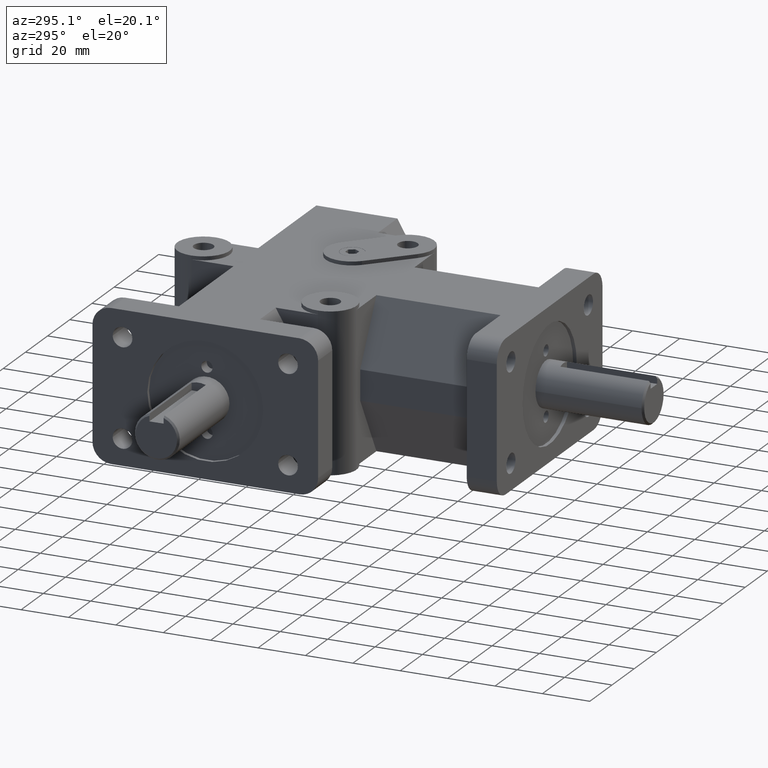
[diagram: clean part render]
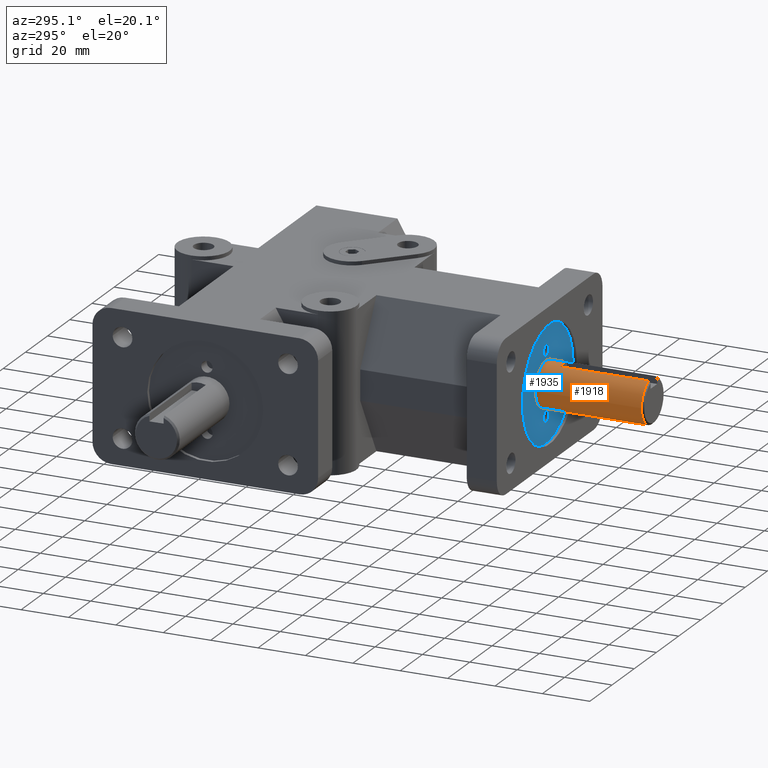
[diagram: same view with the hole feature highlighted: cylindrical wall and planar end face, labeled with their STEP entity ids]
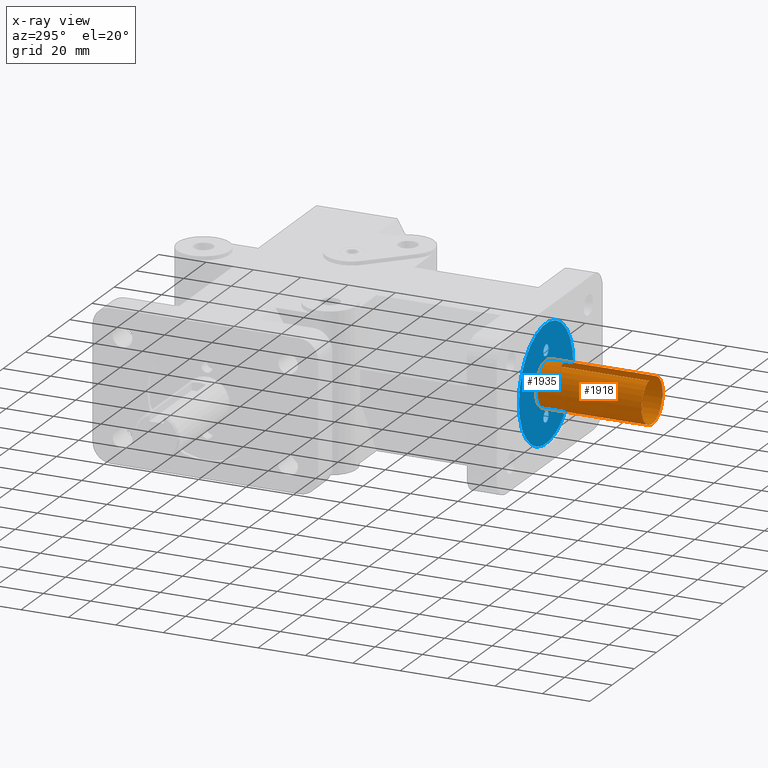
[diagram: x-ray of the same camera — body ghosted, the hole faces saturated]
A machine part, auxiliary view. The highlighted faces form one hole feature of diameter 19 mm: the cylindrical wall (entity #1918, orange) and its adjacent planar end face (entity #1935, blue) — they share a circular edge in the B-rep.
The next image is the same camera in x-ray (body ghosted, the hole faces saturated) — the bore reads through the body.
Wall:
#136=FACE_OUTER_BOUND('',#246,.T.);
#246=EDGE_LOOP('',(#1346,#1347,#1348,#1349,#1350,#1351,#1352,#1353));
#387=LINE('',#2835,#578);
#391=LINE('',#2848,#582);
#397=LINE('',#2867,#588);
#578=VECTOR('',#2255,1.);
#582=VECTOR('',#2261,1.);
#588=VECTOR('',#2277,9.5);
#772=CIRCLE('',#2048,9.5);
#773=CIRCLE('',#2050,9.5);
#774=CIRCLE('',#2051,9.5);
#775=CIRCLE('',#2052,9.5);
#857=VERTEX_POINT('',#2833);
#858=VERTEX_POINT('',#2834);
#862=VERTEX_POINT('',#2846);
#863=VERTEX_POINT('',#2847);
#867=VERTEX_POINT('',#2864);
#868=VERTEX_POINT('',#2866);
#1045=EDGE_CURVE('',#857,#858,#387,.T.);
#1050=EDGE_CURVE('',#862,#863,#391,.T.);
#1057=EDGE_CURVE('',#863,#857,#772,.T.);
#1058=EDGE_CURVE('',#867,#858,#773,.T.);
#1059=EDGE_CURVE('',#867,#868,#397,.T.);
#1060=EDGE_CURVE('',#868,#868,#774,.T.);
#1061=EDGE_CURVE('',#862,#867,#775,.T.);
#1346=ORIENTED_EDGE('',*,*,#1045,.T.);
#1347=ORIENTED_EDGE('',*,*,#1058,.F.);
#1348=ORIENTED_EDGE('',*,*,#1059,.T.);
#1349=ORIENTED_EDGE('',*,*,#1060,.F.);
#1350=ORIENTED_EDGE('',*,*,#1059,.F.);
#1351=ORIENTED_EDGE('',*,*,#1061,.F.);
#1352=ORIENTED_EDGE('',*,*,#1050,.T.);
#1353=ORIENTED_EDGE('',*,*,#1057,.T.);
#1879=CYLINDRICAL_SURFACE('',#2049,9.5);
#1918=ADVANCED_FACE('',(#136),#1879,.T.);
#2048=AXIS2_PLACEMENT_3D('',#2862,#2271,#2272);
#2049=AXIS2_PLACEMENT_3D('',#2863,#2273,#2274);
#2050=AXIS2_PLACEMENT_3D('',#2865,#2275,#2276);
#2051=AXIS2_PLACEMENT_3D('',#2868,#2278,#2279);
#2052=AXIS2_PLACEMENT_3D('',#2869,#2280,#2281);
#2255=DIRECTION('',(0.,-1.,0.));
#2261=DIRECTION('',(0.,1.,0.));
#2271=DIRECTION('center_axis',(0.,1.,0.));
#2272=DIRECTION('ref_axis',(1.,0.,0.));
#2273=DIRECTION('center_axis',(0.,-1.,0.));
#2274=DIRECTION('ref_axis',(1.,0.,0.));
#2275=DIRECTION('center_axis',(0.,-1.,0.));
#2276=DIRECTION('ref_axis',(-1.,0.,0.));
#2277=DIRECTION('',(0.,1.,0.));
#2278=DIRECTION('center_axis',(0.,1.,0.));
#2279=DIRECTION('ref_axis',(1.,0.,0.));
#2280=DIRECTION('center_axis',(0.,-1.,0.));
#2281=DIRECTION('ref_axis',(-1.,0.,0.));
#2833=CARTESIAN_POINT('',(3.,-5.9,9.01387818865997));
#2834=CARTESIAN_POINT('',(3.,-43.238,9.01387818865997));
#2835=CARTESIAN_POINT('',(3.,-21.238,9.01387818865997));
#2846=CARTESIAN_POINT('',(-3.,-43.238,9.01387818865997));
#2847=CARTESIAN_POINT('',(-3.,-5.9,9.01387818865997));
#2848=CARTESIAN_POINT('',(-3.,-21.238,9.01387818865997));
#2862=CARTESIAN_POINT('Origin',(0.,-5.9,0.));
#2863=CARTESIAN_POINT('Origin',(0.,-21.238,0.));
#2864=CARTESIAN_POINT('',(-9.5,-43.238,-1.16341445918999E-15));
#2865=CARTESIAN_POINT('Origin',(0.,-43.238,0.));
#2866=CARTESIAN_POINT('',(-9.5,1.524,-1.16341445918999E-15));
#2867=CARTESIAN_POINT('',(-9.5,-21.238,-1.16341445918999E-15));
#2868=CARTESIAN_POINT('Origin',(0.,1.524,0.));
#2869=CARTESIAN_POINT('Origin',(0.,-43.238,0.));
End face:
#18=FACE_BOUND('',#267,.T.);
#19=FACE_BOUND('',#268,.T.);
#20=FACE_BOUND('',#269,.T.);
#68=PLANE('',#2087);
#153=FACE_OUTER_BOUND('',#266,.T.);
#266=EDGE_LOOP('',(#1426));
#267=EDGE_LOOP('',(#1427));
#268=EDGE_LOOP('',(#1428));
#269=EDGE_LOOP('',(#1429));
#767=CIRCLE('',#2037,24.4602);
#774=CIRCLE('',#2051,9.5);
#790=CIRCLE('',#2081,2.38125);
#792=CIRCLE('',#2084,2.38125);
#852=VERTEX_POINT('',#2817);
#868=VERTEX_POINT('',#2866);
#889=VERTEX_POINT('',#2939);
#891=VERTEX_POINT('',#2945);
#1038=EDGE_CURVE('',#852,#852,#767,.T.);
#1060=EDGE_CURVE('',#868,#868,#774,.T.);
#1093=EDGE_CURVE('',#889,#889,#790,.T.);
#1096=EDGE_CURVE('',#891,#891,#792,.T.);
#1426=ORIENTED_EDGE('',*,*,#1038,.T.);
#1427=ORIENTED_EDGE('',*,*,#1060,.T.);
#1428=ORIENTED_EDGE('',*,*,#1093,.T.);
#1429=ORIENTED_EDGE('',*,*,#1096,.T.);
#1935=ADVANCED_FACE('',(#153,#18,#19,#20),#68,.F.);
#2037=AXIS2_PLACEMENT_3D('',#2819,#2237,#2238);
#2051=AXIS2_PLACEMENT_3D('',#2868,#2278,#2279);
#2081=AXIS2_PLACEMENT_3D('',#2940,#2353,#2354);
#2084=AXIS2_PLACEMENT_3D('',#2946,#2360,#2361);
#2087=AXIS2_PLACEMENT_3D('',#2951,#2367,#2368);
#2237=DIRECTION('center_axis',(0.,-1.,0.));
#2238=DIRECTION('ref_axis',(1.,0.,0.));
#2278=DIRECTION('center_axis',(0.,1.,0.));
#2279=DIRECTION('ref_axis',(1.,0.,0.));
#2353=DIRECTION('center_axis',(0.,1.,0.));
#2354=DIRECTION('ref_axis',(1.,0.,0.));
#2360=DIRECTION('center_axis',(0.,1.,0.));
#2361=DIRECTION('ref_axis',(1.,0.,0.));
#2367=DIRECTION('center_axis',(0.,1.,0.));
#2368=DIRECTION('ref_axis',(0.,0.,-1.));
#2817=CARTESIAN_POINT('',(-24.4602,1.524,2.99551056365041E-15));
#2819=CARTESIAN_POINT('Origin',(0.,1.524,0.));
#2866=CARTESIAN_POINT('',(-9.5,1.524,-1.16341445918999E-15));
#2868=CARTESIAN_POINT('Origin',(0.,1.524,0.));
#2939=CARTESIAN_POINT('',(-2.38124999999711,1.524,-13.4619999999964));
#2940=CARTESIAN_POINT('Origin',(2.88764567812905E-12,1.524,-13.4619999999964));
#2945=CARTESIAN_POINT('',(-2.38124999999711,1.524,13.4620000000022));
#2946=CARTESIAN_POINT('Origin',(2.88764567812905E-12,1.524,13.4620000000022));
#2951=CARTESIAN_POINT('Origin',(1.73181818181818,1.524,-4.24159109823932E-16));